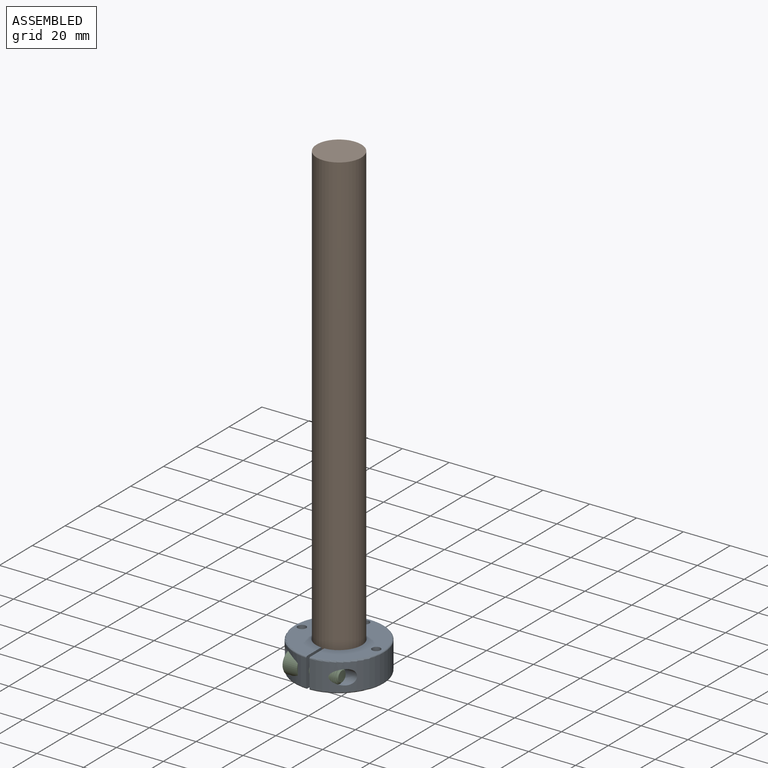
[diagram: assembled view]
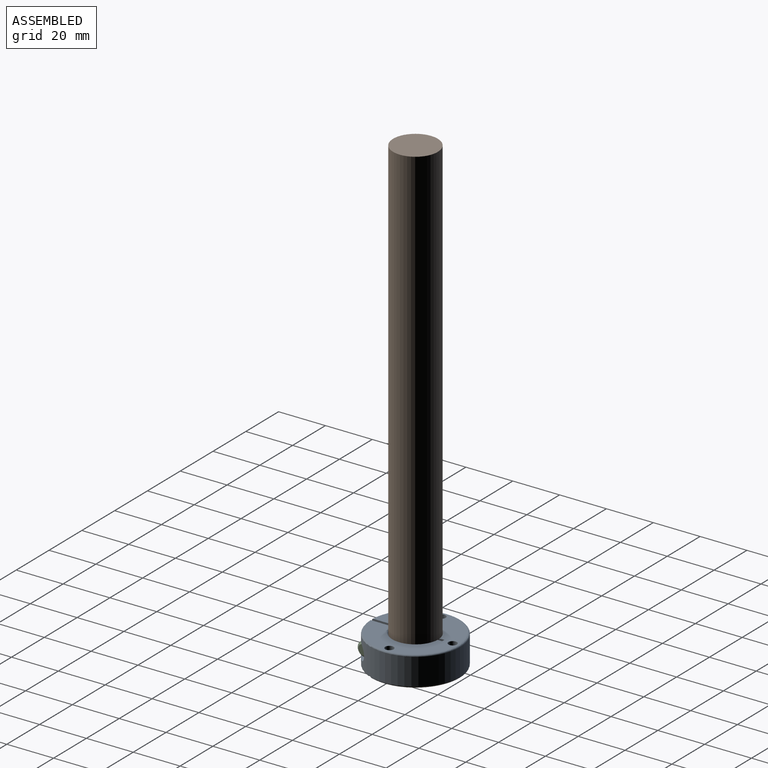
[diagram: assembled view, second angle]
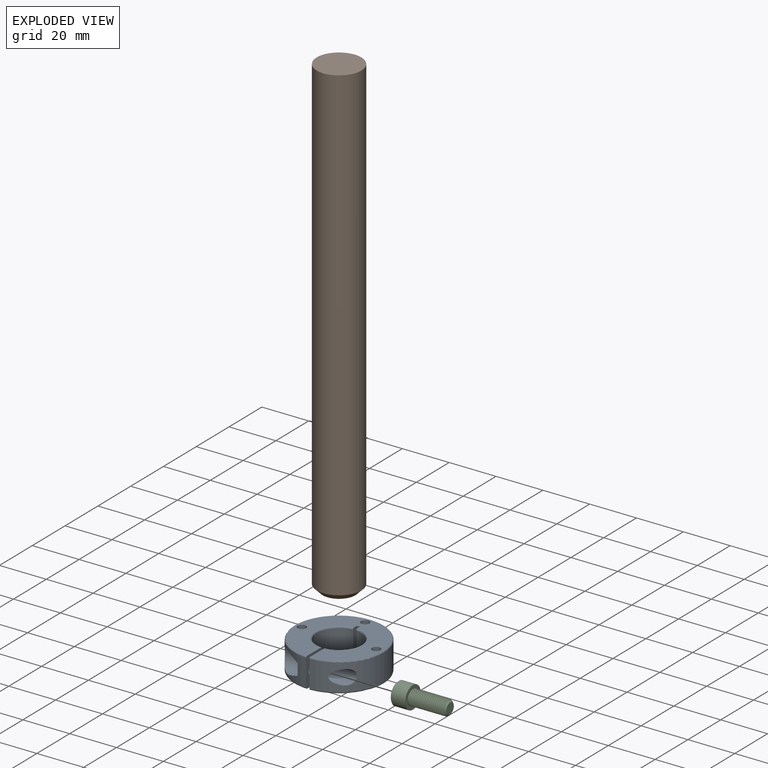
[diagram: exploded view]
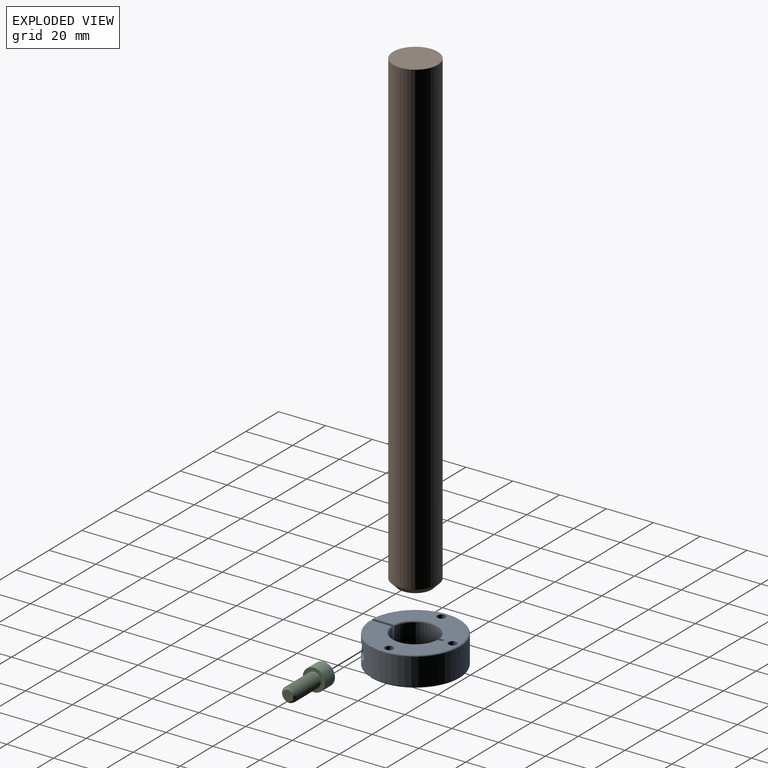
[diagram: exploded view, second angle]
ASSEMBLY  parts=3 mates=2
PART A: 28 faces, bbox 41.3x12.9x41.2 mm
  f0: torus R=14.29mm, axis (0,1,0), area 12.6mm2, adj f5,f6,f12,f27
  f1: torus R=14.29mm, axis (0,1,0), area 12.6mm2, adj f6,f12,f26,f27
  f2: torus R=14.29mm, axis (0,1,0), area 12.6mm2, adj f3,f6,f12,f25
  f3: plane 12.72x9.55mm, normal (1,0,0), area 89mm2, adj f2,f4,f6,f10,f12,f13,f16,f17
  f4: cylinder r=19.05mm len=38.1mm, axis (0,1,0), area 1183.3mm2, adj f3,f5,f16,f17,f21,f22,f23
  f5: plane 12.72x9.55mm, normal (-1,0,0), area 89mm2, adj f0,f4,f6,f11,f12,f13,f14,f15
  f6: plane 36.83x36.82mm, normal (0,-1,0), area 372.5mm2, adj f0,f1,f2,f3,f5,f16,f20,f25
  f7: plane 12.72x2.42mm, normal (-1,0,0), area 30.4mm2, adj f8,f11,f12,f13,f14,f15
  f8: plane 12.7x1.36mm, normal (0,0,1), area 17.3mm2, adj f7,f9,f12,f13
  f9: plane 12.72x2.42mm, normal (1,0,0), area 30.4mm2, adj f8,f10,f12,f13,f18,f19
  f10: cylinder r=9.53mm len=19mm, axis (0,1,0), area 326.5mm2, adj f3,f9,f18,f19
  f11: cylinder r=9.53mm len=19mm, axis (0,1,0), area 326.5mm2, adj f5,f7,f14,f15
  f12: plane 28.19x28.18mm, normal (0,-1,0), area 292.3mm2, adj f0,f1,f2,f3,f5,f7,f8,f9
  f13: plane 36.83x36.82mm, normal (0,1,0), area 696.8mm2, adj f3,f5,f7,f8,f9,f15,f17,f19
  f14: torus R=10.16mm, axis (0,-1,0), area 29.2mm2, adj f5,f7,f11,f12
  f15: torus R=10.16mm, axis (0,-1,0), area 29.2mm2, adj f5,f7,f11,f13
  f16: torus R=18.41mm, axis (0,-1,0), area 116.6mm2, adj f3,f4,f5,f6
  f17: torus R=18.41mm, axis (0,-1,0), area 116.6mm2, adj f3,f4,f5,f13
  f18: torus R=10.16mm, axis (0,-1,0), area 29.2mm2, adj f3,f9,f10,f12
  f19: torus R=10.16mm, axis (0,-1,0), area 29.2mm2, adj f3,f9,f10,f13
  f20: torus R=14.29mm, axis (0,1,0), area 12.6mm2, adj f6,f12,f25,f26
  f21: cylinder r=3.17mm len=14.81mm, axis (1,0,0), area 228.1mm2, adj f4,f5
  f22: plane 9.65x9mm, normal (-1,0,0), area 39.4mm2, adj f4,f23,f24
  f23: cylinder r=4.83mm len=11.78mm, axis (1,0,0), area 202.8mm2, adj f4,f22
  f24: cylinder r=3.17mm len=6.35mm, axis (1,0,0), area 81.4mm2, adj f3,f22
  f25: cylinder r=1.8mm len=12.7mm, axis (0,-1,0), area 143.6mm2, adj f2,f6,f12,f13,f20
  f26: cylinder r=1.8mm len=12.7mm, axis (0,-1,0), area 143.6mm2, adj f1,f6,f12,f13,f20
  f27: cylinder r=1.8mm len=12.7mm, axis (0,-1,0), area 143.6mm2, adj f0,f1,f6,f12,f13
PART B: 4 faces, bbox 19.1x19.1x203.2 mm
  f0: cylinder r=9.53mm len=200.66mm, axis (0,0,-1), area 12009mm2, adj f1,f3
  f1: plane 19.05x19.05mm, normal (0,0,1), area 285mm2, adj f0
  f2: plane 13.97x13.97mm, normal (0,0,-1), area 153.3mm2, adj f3
  f3: cone r=9.53mm half-angle=45deg, axis (0,0,1), area 186.3mm2, adj f0,f2
PART C: 35 faces, bbox 22.4x9.5x9.5 mm
  f0: cone r=2.27mm half-angle=45deg, axis (-1,0,0), area 12.2mm2, adj f1,f2,f31,f34
  f1: cone r=2.27mm half-angle=45deg, axis (-1,0,0), area 2mm2, adj f0,f19,f31,f32
  f2: plane 4.54x4.54mm, normal (1,0,0), area 16.2mm2, adj f0
  f3: cylinder r=3.17mm len=6.35mm, axis (1,0,0), area 14.1mm2, adj f4,f20,f31,f32,f33
  f4: cylinder r=3.17mm len=6.35mm, axis (1,0,0), area 2.3mm2, adj f3,f5,f31,f32
  f5: cylinder r=3.17mm len=6.35mm, axis (1,0,0), area 2.3mm2, adj f4,f6,f31,f32
  f6: cylinder r=3.17mm len=6.35mm, axis (1,0,0), area 2.3mm2, adj f5,f7,f31,f32
  f7: cylinder r=3.17mm len=6.35mm, axis (1,0,0), area 2.3mm2, adj f6,f8,f31,f32
  f8: cylinder r=3.17mm len=6.35mm, axis (1,0,0), area 2.3mm2, adj f7,f9,f31,f32
  f9: cylinder r=3.17mm len=6.35mm, axis (1,0,0), area 2.3mm2, adj f8,f10,f31,f32
  f10: cylinder r=3.17mm len=6.35mm, axis (1,0,0), area 2.3mm2, adj f9,f11,f31,f32
  f11: cylinder r=3.17mm len=6.35mm, axis (1,0,0), area 2.3mm2, adj f10,f12,f31,f32
  f12: cylinder r=3.17mm len=6.35mm, axis (1,0,0), area 2.3mm2, adj f11,f13,f31,f32
  f13: cylinder r=3.17mm len=6.35mm, axis (1,0,0), area 2.3mm2, adj f12,f14,f31,f32
  f14: cylinder r=3.17mm len=6.35mm, axis (1,0,0), area 2.3mm2, adj f13,f15,f31,f32
  f15: cylinder r=3.17mm len=6.35mm, axis (1,0,0), area 2.3mm2, adj f14,f16,f31,f32
  f16: cylinder r=3.17mm len=6.35mm, axis (1,0,0), area 2.3mm2, adj f15,f17,f31,f32
  f17: cylinder r=3.17mm len=6.35mm, axis (1,0,0), area 2.3mm2, adj f16,f18,f31,f32
  f18: cylinder r=3.17mm len=6.35mm, axis (1,0,0), area 2.3mm2, adj f17,f19,f31,f32
  f19: cylinder r=3.17mm len=2.25mm, axis (1,0,0), area 0.1mm2, adj f1,f18,f31
  f20: plane 9.53x9.53mm, normal (1,0,0), area 39.6mm2, adj f3,f21
  f21: cylinder r=4.76mm len=9.53mm, axis (1,0,0), area 180.5mm2, adj f20,f30
  f22: plane 8.89x8.89mm, normal (-1,0,0), area 42.4mm2, adj f23,f24,f25,f26,f27,f28,f30
  f23: plane 4.76x2.75mm, normal (0,-1,0), area 13.1mm2, adj f22,f24,f28,f29
  f24: plane 4.76x2.38mm, normal (0,-0.5,-0.87), area 13.1mm2, adj f22,f23,f25,f29
  f25: plane 4.76x2.38mm, normal (0,0.5,-0.87), area 13.1mm2, adj f22,f24,f26,f29
  f26: plane 4.76x2.75mm, normal (0,1,0), area 13.1mm2, adj f22,f25,f27,f29
  f27: plane 4.76x2.38mm, normal (0,0.5,0.87), area 13.1mm2, adj f22,f26,f28,f29
  f28: plane 4.76x2.38mm, normal (0,-0.5,0.87), area 13.1mm2, adj f22,f23,f27,f29
  f29: plane 5.5x4.76mm, normal (-1,0,0), area 19.6mm2, adj f23,f24,f25,f26,f27,f28
  f30: cone r=4.76mm half-angle=45deg, axis (1,0,0), area 13mm2, adj f21,f22
  f31: bspline ~15.34x6.45mm, area 195.6mm2, adj f0,f1,f3,f4,f5,f6,f7,f8
  f32: bspline ~15.45x6.45mm, area 202mm2, adj f1,f3,f4,f5,f6,f7,f8,f9
  f33: plane 0.79x0.59mm, normal (0,0,1), area 0.3mm2, adj f3,f31,f32,f34
  f34: bspline ~15.19x5.17mm, area 30.4mm2, adj f0,f31,f32,f33
PLACE A rot(axis=(1,0,0),90deg) t=(-185.58,-53.41,8.89)mm
PLACE B at identity
PLACE C rot(axis=(1,0,0),90deg) t=(-185.48,-53.41,8.89)mm
MATE fastened A.f0 <-> B.f0  axis (0,0,-1) through (-185.58,-53.41,2.54)mm
MATE fastened A.f21 <-> C.f3  axis (1,0,0) through (-196.28,-67.68,8.89)mm
